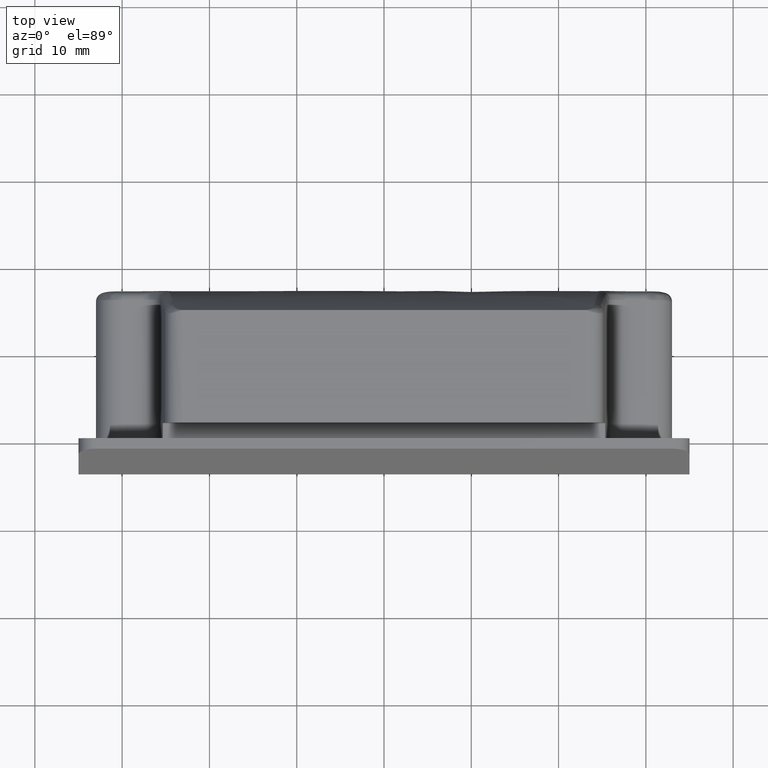
[diagram: clean part render]
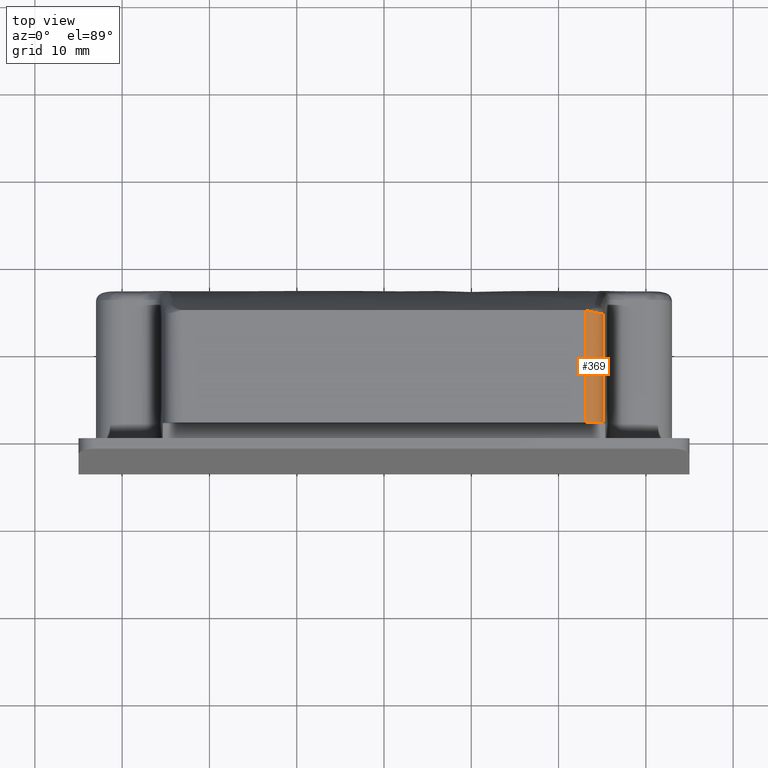
[diagram: same view with one face highlighted and labeled with its STEP entity id]
A machine part, top view. The second image highlights one B-rep face of the part: STEP entity #369.
In plain terms, the highlighted face is a freeform B-spline surface patch.
Its self-contained STEP definition (entity closure, byte-faithful):
#270=CARTESIAN_POINT('',(23.071234103384299,14.944167999546970,21.249314649951110));
#271=CARTESIAN_POINT('',(23.071234103384299,1.420145800011326,21.249314649951110));
#272=CARTESIAN_POINT('',(25.070548753335419,14.944167999546963,21.301668546566809));
#273=CARTESIAN_POINT('',(25.070548753335419,1.420145800011327,21.301668546566809));
#274=CARTESIAN_POINT('',(25.122902649951119,14.944167999546970,19.302353896615710));
#275=CARTESIAN_POINT('',(25.122902649951119,1.420145800011326,19.302353896615710));
#283=(BOUNDED_SURFACE()B_SPLINE_SURFACE(1,2,((#270,#272,#274),(#271,#273,#275)),.UNSPECIFIED.,.F.,.F.,.U.)B_SPLINE_SURFACE_WITH_KNOTS((2,2),(3,3),(0.0,13.524022199535640),(0.0,3.313708498984751),.UNSPECIFIED.)GEOMETRIC_REPRESENTATION_ITEM()RATIONAL_B_SPLINE_SURFACE(((1.0,0.707106781186548,1.0),(1.0,0.707106781186548,1.0)))REPRESENTATION_ITEM('')SURFACE());
#284=CARTESIAN_POINT('',(25.118378640943948,14.313007216417921,19.394257751273550));
#285=VERTEX_POINT('',#284);
#286=CARTESIAN_POINT('',(25.118378640943948,1.750000000000030,19.394257751273550));
#287=VERTEX_POINT('',#286);
#288=CARTESIAN_POINT('',(25.118378640943948,14.313007216417921,19.394257751273550));
#289=CARTESIAN_POINT('',(25.118378640943948,1.750000000000030,19.394257751273550));
#290=QUASI_UNIFORM_CURVE('',1,(#288,#289),.UNSPECIFIED.,.F.,.U.);
#291=EDGE_CURVE('',#285,#287,#290,.T.);
#292=ORIENTED_EDGE('',*,*,#291,.F.);
#293=CARTESIAN_POINT('',(23.123588000000051,14.622359023948260,21.250000000000000));
#294=VERTEX_POINT('',#293);
#295=CARTESIAN_POINT('',(25.118378640943948,14.313007216417921,19.394257751273550));
#296=CARTESIAN_POINT('',(25.117923618140409,14.311916436169600,19.400327325351860));
#297=CARTESIAN_POINT('',(25.117007650665840,14.309720679159890,19.412545465497391));
#298=CARTESIAN_POINT('',(25.115407651614611,14.306572176190549,19.431003505094679));
#299=CARTESIAN_POINT('',(25.113623107520599,14.303502125715211,19.449704247395321));
#300=CARTESIAN_POINT('',(25.111631181675548,14.300522940922010,19.468646467348741));
#301=CARTESIAN_POINT('',(25.109428941302269,14.297631231387131,19.487827363861950));
#302=CARTESIAN_POINT('',(25.107007929419449,14.294827922951480,19.507244373844198));
#303=CARTESIAN_POINT('',(25.104361113037530,14.292112762850930,19.526894671130599));
#304=CARTESIAN_POINT('',(25.101480989691439,14.289485820136489,19.546775297635850));
#305=CARTESIAN_POINT('',(25.098360108363941,14.286947076036819,19.566883121869331));
#306=CARTESIAN_POINT('',(25.094990931476580,14.284496535775959,19.587214844550651));
#307=CARTESIAN_POINT('',(25.091365876909268,14.282134198039660,19.607766991444102));
#308=CARTESIAN_POINT('',(25.087477311195361,14.279860063349730,19.628535909379892));
#309=CARTESIAN_POINT('',(25.083317555846609,14.277674131613409,19.649517762563999));
#310=CARTESIAN_POINT('',(25.078878891821020,14.275576403403139,19.670708524447690));
#311=CARTESIAN_POINT('',(25.074153558961392,14.273566877281770,19.692103987440650));
#312=CARTESIAN_POINT('',(25.069133778859339,14.271645559348510,19.713699704702730));
#313=CARTESIAN_POINT('',(25.063811688663730,14.269812427168789,19.735491189960879));
#314=CARTESIAN_POINT('',(25.052138618019221,14.266196019029660,19.781051103386400));
#315=CARTESIAN_POINT('',(25.032004380258780,14.261494336074611,19.850944731669731));
#316=CARTESIAN_POINT('',(24.999823436703551,14.256867026340290,19.945092603883879));
#317=CARTESIAN_POINT('',(24.961660271869778,14.253821419472480,20.040655006773999));
#318=CARTESIAN_POINT('',(24.903467848372319,14.251922184398859,20.166802354188409));
#319=CARTESIAN_POINT('',(24.818090740538821,14.253229074324960,20.319195947975921));
#320=CARTESIAN_POINT('',(24.711663176731470,14.259503489691101,20.469871355219119));
#321=CARTESIAN_POINT('',(24.608447743694320,14.268607548805640,20.592124849523469));
#322=CARTESIAN_POINT('',(24.514566281319158,14.278968966525399,20.689172719029600));
#323=CARTESIAN_POINT('',(24.400260668457150,14.293813697906231,20.792439801587239));
#324=CARTESIAN_POINT('',(24.262918245588299,14.314692120536780,20.897486131598839));
#325=CARTESIAN_POINT('',(24.127337493711192,14.338728064513431,20.981922160073740));
#326=CARTESIAN_POINT('',(24.016770067715360,14.360318530805880,21.040269605390719));
#327=CARTESIAN_POINT('',(23.934225964983661,14.377595203221659,21.079073244280892));
#328=CARTESIAN_POINT('',(23.852245397804410,14.396151492056790,21.113244171422849));
#329=CARTESIAN_POINT('',(23.770276988213251,14.416046724507311,21.143220117893591));
#330=CARTESIAN_POINT('',(23.688592079282770,14.437231834023549,21.169151697132921));
#331=CARTESIAN_POINT('',(23.607259336522059,14.459663385325269,21.191242716344469));
#332=CARTESIAN_POINT('',(23.525271263170691,14.483639347802949,21.209847025996119));
#333=CARTESIAN_POINT('',(23.458195567532911,14.504395614959771,21.222133104039671));
#334=CARTESIAN_POINT('',(23.406414749847990,14.521056817012560,21.230015053115160));
#335=CARTESIAN_POINT('',(23.370130109613790,14.533004297399129,21.234857607054430));
#336=CARTESIAN_POINT('',(23.334087495992542,14.545153860345190,21.239000905032128));
#337=CARTESIAN_POINT('',(23.298300298734262,14.557504749539900,21.242461579624969));
#338=CARTESIAN_POINT('',(23.262782097683779,14.570057653782120,21.245254916312039));
#339=CARTESIAN_POINT('',(23.227544734243150,14.582810591350640,21.247401361432630));
#340=CARTESIAN_POINT('',(23.192603067786841,14.595770743878679,21.248902831008401));
#341=CARTESIAN_POINT('',(23.157958075954920,14.608911605598600,21.249830081705220));
#342=CARTESIAN_POINT('',(23.135020692918012,14.617885940887840,21.249943479214650));
#343=CARTESIAN_POINT('',(23.123588000000002,14.622359023947929,21.250000000000000));
#344=B_SPLINE_CURVE_WITH_KNOTS('',3,(#295,#296,#297,#298,#299,#300,#301,#302,#303,#304,#305,#306,#307,#308,#309,#310,#311,#312,#313,#314,#315,#316,#317,#318,#319,#320,#321,#322,#323,#324,#325,#326,#327,#328,#329,#330,#331,#332,#333,#334,#335,#336,#337,#338,#339,#340,#341,#342,#343),.UNSPECIFIED.,.F.,.U.,(4,1,1,1,1,1,1,1,1,1,1,1,1,1,1,1,1,1,1,1,1,1,1,1,1,1,1,1,1,1,1,1,1,1,1,1,1,1,1,1,1,1,1,1,1,1,4),(0.0,0.006093913029043,0.012267138380294,0.018519974732253,0.024852709497615,0.031265619345083,0.037758970693643,0.044333020181024,0.050988015107611,0.057724193857314,0.064541786296599,0.071441014152993,0.078422091374072,0.085485224468176,0.092630612827754,0.099858449036386,0.107168919160301,0.114562203025437,0.122038474480533,0.153655358672501,0.186357730520836,0.220155595947082,0.255058015639246,0.323221701045783,0.391956985746771,0.436594797089999,0.481038166620709,0.525304010205864,0.588997553667405,0.652384839822554,0.684209120909192,0.713985887832647,0.743836425072829,0.773596141880243,0.802172948366030,0.830810429457063,0.859517599027076,0.888303405484618,0.901033572362223,0.913682124042195,0.926249791711904,0.938737320769601,0.951145471058836,0.963475017101713,0.975726748330443,0.987901469317006,1.000000000000000),.UNSPECIFIED.);
#345=EDGE_CURVE('',#285,#294,#344,.T.);
#346=ORIENTED_EDGE('',*,*,#345,.T.);
#347=CARTESIAN_POINT('',(23.123588000000002,1.750000000000000,21.250000000000000));
#348=VERTEX_POINT('',#347);
#349=CARTESIAN_POINT('',(23.123588000000051,14.622359023948260,21.250000000000000));
#350=CARTESIAN_POINT('',(23.123588000000002,1.750000000000000,21.250000000000000));
#351=QUASI_UNIFORM_CURVE('',1,(#349,#350),.UNSPECIFIED.,.F.,.U.);
#352=EDGE_CURVE('',#294,#348,#351,.T.);
#353=ORIENTED_EDGE('',*,*,#352,.T.);
#354=CARTESIAN_POINT('',(25.118378640943931,1.750000000000030,19.394257751273550));
#355=CARTESIAN_POINT('',(24.984176485464641,1.750000000000031,21.250000000000000));
#356=CARTESIAN_POINT('',(23.123588000000002,1.750000000000030,21.250000000000000));
#364=(BOUNDED_CURVE()B_SPLINE_CURVE(2,(#354,#355,#356),.UNSPECIFIED.,.F.,.U.)CURVE()GEOMETRIC_REPRESENTATION_ITEM()QUASI_UNIFORM_CURVE()RATIONAL_B_SPLINE_CURVE((1.0,0.732164215062705,1.0))REPRESENTATION_ITEM(''));
#365=EDGE_CURVE('',#287,#348,#364,.T.);
#366=ORIENTED_EDGE('',*,*,#365,.F.);
#367=EDGE_LOOP('',(#292,#346,#353,#366));
#368=FACE_OUTER_BOUND('',#367,.T.);
#369=ADVANCED_FACE('',(#368),#283,.T.);